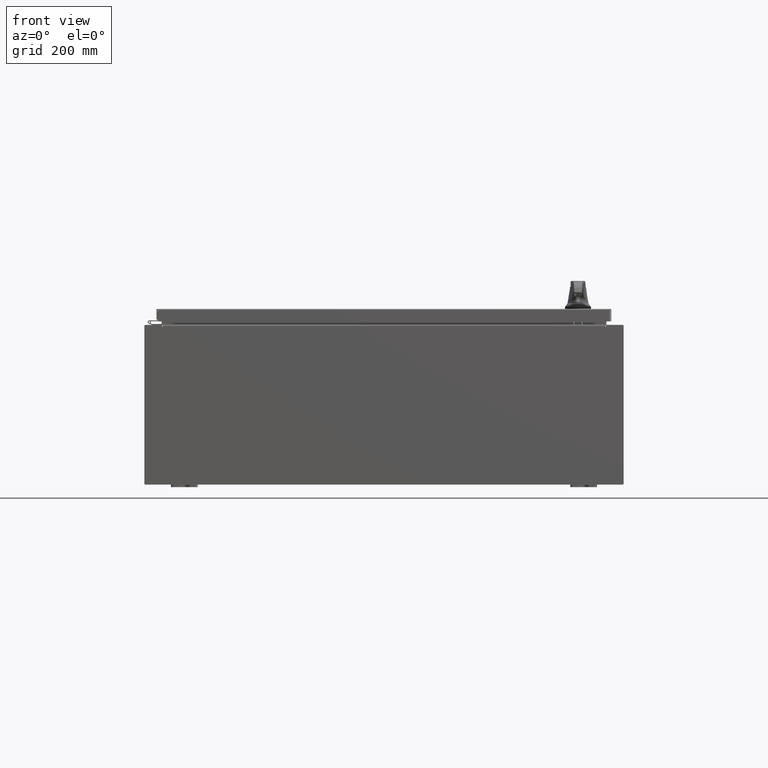
[diagram: clean part render]
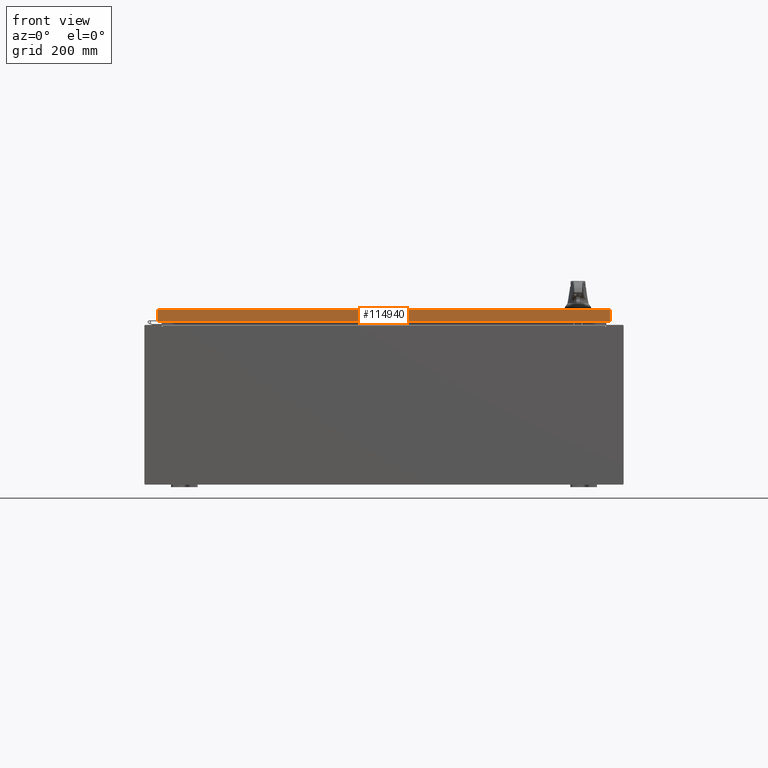
[diagram: same view with one face highlighted and labeled with its STEP entity id]
A machine part, front view. The second image highlights one B-rep face of the part: STEP entity #114940.
In plain terms, the highlighted planar face has unit normal (-0, 1, -0).
Its self-contained STEP definition (entity closure, byte-faithful):
#6881 = EDGE_CURVE ( 'NONE', #42773, #55378, #119340, .T. ) ;
#7843 = CARTESIAN_POINT ( 'NONE',  ( 5.539734228534313800E-030, -17.09399999999999800, 4.354999984715587200E-014 ) ) ;
#11450 = AXIS2_PLACEMENT_3D ( 'NONE', #7843, #94883, #37023 ) ;
#15974 = VERTEX_POINT ( 'NONE', #21444 ) ;
#16656 = VECTOR ( 'NONE', #47165, 39.37007874015748100 ) ;
#16889 = ORIENTED_EDGE ( 'NONE', *, *, #72885, .F. ) ;
#17184 = VECTOR ( 'NONE', #24130, 39.37007874015748100 ) ;
#19615 = ORIENTED_EDGE ( 'NONE', *, *, #50210, .F. ) ;
#21444 = CARTESIAN_POINT ( 'NONE',  ( 16.98915786437627100, -17.09400000000000100, -0.9376999999999997600 ) ) ;
#24130 = DIRECTION ( 'NONE',  ( -1.000000000000000000, 4.379057701015054300E-047, 1.279703943630056800E-016 ) ) ;
#37023 = DIRECTION ( 'NONE',  ( 0.0000000000000000000, 2.532419924601866100E-015, 1.000000000000000000 ) ) ;
#42399 = LINE ( 'NONE', #114801, #16656 ) ;
#42773 = VERTEX_POINT ( 'NONE', #76916 ) ;
#47165 = DIRECTION ( 'NONE',  ( 1.000000000000000000, 3.240747764440338900E-031, -8.113934696013458900E-046 ) ) ;
#50210 = EDGE_CURVE ( 'NONE', #89852, #15974, #91462, .T. ) ;
#53383 = CARTESIAN_POINT ( 'NONE',  ( 17.07799999999999900, -17.09400000000000100, -0.9376999999999997600 ) ) ;
#55378 = VERTEX_POINT ( 'NONE', #110023 ) ;
#56120 = CARTESIAN_POINT ( 'NONE',  ( -16.98915786437627100, -17.09399999999999800, 4.354999984715587200E-014 ) ) ;
#57880 = ORIENTED_EDGE ( 'NONE', *, *, #6881, .T. ) ;
#65786 = VECTOR ( 'NONE', #108115, 39.37007874015748100 ) ;
#68648 = LINE ( 'NONE', #53383, #17184 ) ;
#72885 = EDGE_CURVE ( 'NONE', #15974, #55378, #68648, .T. ) ;
#75497 = EDGE_LOOP ( 'NONE', ( #87382, #57880, #16889, #19615 ) ) ;
#76916 = CARTESIAN_POINT ( 'NONE',  ( -16.98915786437626700, -17.09399999999999800, -0.08770000000000008300 ) ) ;
#87382 = ORIENTED_EDGE ( 'NONE', *, *, #91521, .F. ) ;
#89852 = VERTEX_POINT ( 'NONE', #113093 ) ;
#90586 = VECTOR ( 'NONE', #114050, 39.37007874015748100 ) ;
#91462 = LINE ( 'NONE', #117375, #65786 ) ;
#91521 = EDGE_CURVE ( 'NONE', #42773, #89852, #42399, .T. ) ;
#94883 = DIRECTION ( 'NONE',  ( -3.240747764440338400E-031, 1.000000000000000000, -2.532419924601866100E-015 ) ) ;
#104233 = PLANE ( 'NONE',  #11450 ) ;
#108115 = DIRECTION ( 'NONE',  ( -0.0000000000000000000, -2.532419924601866100E-015, -1.000000000000000000 ) ) ;
#109361 = FACE_OUTER_BOUND ( 'NONE', #75497, .T. ) ;
#110023 = CARTESIAN_POINT ( 'NONE',  ( -16.98915786437626700, -17.09400000000000100, -0.9376999999999954300 ) ) ;
#113093 = CARTESIAN_POINT ( 'NONE',  ( 16.98915786437626700, -17.09399999999999800, -0.08770000000000008300 ) ) ;
#114050 = DIRECTION ( 'NONE',  ( 0.0000000000000000000, -2.532419924601866100E-015, -1.000000000000000000 ) ) ;
#114801 = CARTESIAN_POINT ( 'NONE',  ( 17.07799999999999900, -17.09399999999999800, -0.08770000000000008300 ) ) ;
#114940 = ADVANCED_FACE ( 'NONE', ( #109361 ), #104233, .F. ) ;
#117375 = CARTESIAN_POINT ( 'NONE',  ( 16.98915786437627100, -17.09399999999999800, -0.07469999999999980800 ) ) ;
#119340 = LINE ( 'NONE', #56120, #90586 ) ;